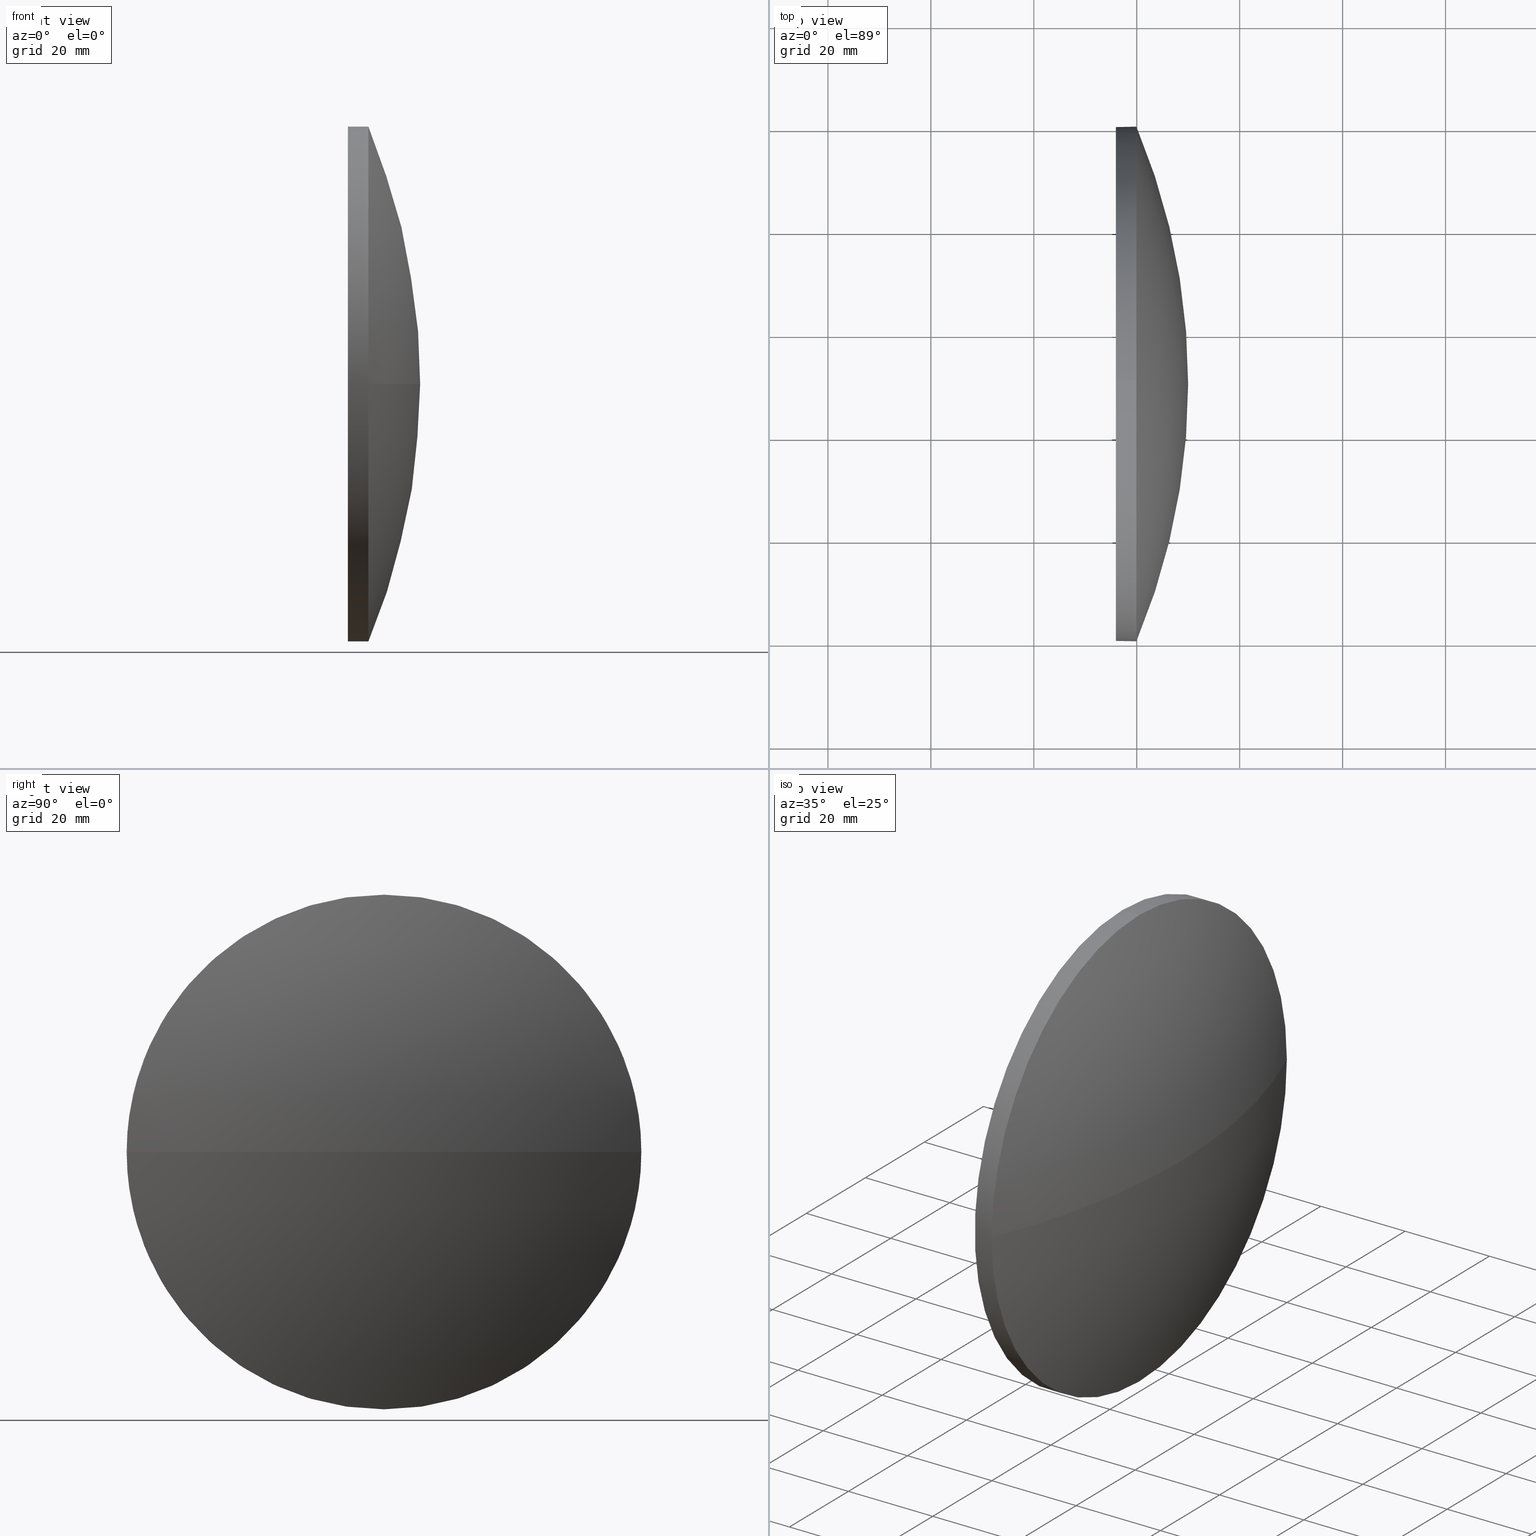
[diagram: canonical four-view strip — front | top / right | iso, engineering-drawing reading convention]
A machine part, canonical four-view strip (front | top / right | iso — engineering-drawing reading convention). The complete STEP part file that produces these views, byte-faithful:
ISO-10303-21;
HEADER;
FILE_DESCRIPTION (( 'STEP AP214' ),
    '1' );
FILE_NAME ('100084.STEP',
    '2019-05-13T01:29:20',
    ( '' ),
    ( '' ),
    'SwSTEP 2.0',
    'SolidWorks 2016',
    '' );
FILE_SCHEMA (( 'AUTOMOTIVE_DESIGN' ));
ENDSEC;

DATA;
#1 =( NAMED_UNIT ( * ) SI_UNIT ( $, .STERADIAN. ) SOLID_ANGLE_UNIT ( ) );
#2 = CYLINDRICAL_SURFACE ( 'NONE', #167, 50.00000000000001400 ) ;
#3 = UNCERTAINTY_MEASURE_WITH_UNIT (LENGTH_MEASURE( 1.000000000000000100E-005 ), #31, 'distance_accuracy_value', 'NONE');
#4 = VERTEX_POINT ( 'NONE', #12 ) ;
#5 = VERTEX_POINT ( 'NONE', #129 ) ;
#6 = MECHANICAL_DESIGN_GEOMETRIC_PRESENTATION_REPRESENTATION (  '', ( #56 ), #128 ) ;
#7 = SURFACE_STYLE_FILL_AREA ( #17 ) ;
#8 = ORIENTED_EDGE ( 'NONE', *, *, #146, .T. ) ;
#9 = ADVANCED_FACE ( 'NONE', ( #37 ), #142, .F. ) ;
#10 = CIRCLE ( 'NONE', #36, 50.00000000000001400 ) ;
#11 = CARTESIAN_POINT ( 'NONE',  ( 239.9389074292314500, 180.0418907599244800, 6.123233995736760600E-015 ) ) ;
#12 = CARTESIAN_POINT ( 'NONE',  ( 239.9389074292314500, 130.0418907599245100, -50.00000000000001400 ) ) ;
#13 = SURFACE_STYLE_USAGE ( .BOTH. , #103 ) ;
#14 = EDGE_CURVE ( 'NONE', #101, #59, #132, .T. ) ;
#15 = AXIS2_PLACEMENT_3D ( 'NONE', #169, #130, #86 ) ;
#16 = CARTESIAN_POINT ( 'NONE',  ( 217.3311486608872700, 130.0418907599245100, -50.00000000000001400 ) ) ;
#17 = FILL_AREA_STYLE ('',( #30 ) ) ;
#18 = COLOUR_RGB ( '',1.000000000000000000, 1.000000000000000000, 1.000000000000000000 ) ;
#19 =( NAMED_UNIT ( * ) PLANE_ANGLE_UNIT ( ) SI_UNIT ( $, .RADIAN. ) );
#20 = DIRECTION ( 'NONE',  ( 1.000000000000000000, 0.0000000000000000000, 0.0000000000000000000 ) ) ;
#21 = MANIFOLD_SOLID_BREP ( '��ת1', #53 ) ;
#22 = SPHERICAL_SURFACE ( 'NONE', #157, 129.4031094527363200 ) ;
#23 = CIRCLE ( 'NONE', #137, 50.00000000000001400 ) ;
#24 = EDGE_CURVE ( 'NONE', #73, #4, #140, .T. ) ;
#25 = AXIS2_PLACEMENT_3D ( 'NONE', #48, #149, #164 ) ;
#26 = DIRECTION ( 'NONE',  ( 0.0000000000000000000, 0.0000000000000000000, 1.000000000000000000 ) ) ;
#27 = ORIENTED_EDGE ( 'NONE', *, *, #74, .T. ) ;
#28 = CARTESIAN_POINT ( 'NONE',  ( 239.9389074292314500, 130.0418907599245100, 0.0000000000000000000 ) ) ;
#29 = SHAPE_DEFINITION_REPRESENTATION ( #160, #96 ) ;
#30 = FILL_AREA_STYLE_COLOUR ( '', #89 ) ;
#31 =( LENGTH_UNIT ( ) NAMED_UNIT ( * ) SI_UNIT ( .MILLI., .METRE. ) );
#32 = CARTESIAN_POINT ( 'NONE',  ( 217.3311486608872700, 130.0418907599245100, 0.0000000000000000000 ) ) ;
#33 = ORIENTED_EDGE ( 'NONE', *, *, #55, .F. ) ;
#34 = DIRECTION ( 'NONE',  ( 0.0000000000000000000, -1.000000000000000000, -1.224646799147353200E-016 ) ) ;
#35 = EDGE_CURVE ( 'NONE', #101, #73, #136, .T. ) ;
#36 = AXIS2_PLACEMENT_3D ( 'NONE', #94, #107, #65 ) ;
#37 = FACE_OUTER_BOUND ( 'NONE', #127, .T. ) ;
#38 = ORIENTED_EDGE ( 'NONE', *, *, #166, .F. ) ;
#39 =( NAMED_UNIT ( * ) PLANE_ANGLE_UNIT ( ) SI_UNIT ( $, .RADIAN. ) );
#40 = ORIENTED_EDGE ( 'NONE', *, *, #74, .F. ) ;
#41 = CARTESIAN_POINT ( 'NONE',  ( 217.3311486608872700, 130.0418907599245100, 50.00000000000001400 ) ) ;
#42 = FILL_AREA_STYLE ('',( #156 ) ) ;
#43 = ORIENTED_EDGE ( 'NONE', *, *, #166, .T. ) ;
#44 = SURFACE_STYLE_USAGE ( .BOTH. , #81 ) ;
#45 = EDGE_CURVE ( 'NONE', #125, #101, #104, .T. ) ;
#46 = ORIENTED_EDGE ( 'NONE', *, *, #14, .T. ) ;
#47 = STYLED_ITEM ( 'NONE', ( #68 ), #96 ) ;
#48 = CARTESIAN_POINT ( 'NONE',  ( 120.5857979764951300, 130.0418907599245700, 0.0000000000000000000 ) ) ;
#49 = LINE ( 'NONE', #16, #64 ) ;
#50 = DIRECTION ( 'NONE',  ( 0.0000000000000000000, 0.0000000000000000000, 1.000000000000000000 ) ) ;
#51 = DIRECTION ( 'NONE',  ( 0.0000000000000000000, -1.000000000000000000, 0.0000000000000000000 ) ) ;
#52 = CARTESIAN_POINT ( 'NONE',  ( 120.5857979764951300, 130.0418907599245700, 0.0000000000000000000 ) ) ;
#53 = CLOSED_SHELL ( 'NONE', ( #54, #139, #84, #110, #9 ) ) ;
#54 = ADVANCED_FACE ( 'NONE', ( #172 ), #113, .T. ) ;
#55 = EDGE_CURVE ( 'NONE', #5, #125, #177, .T. ) ;
#56 = STYLED_ITEM ( 'NONE', ( #138 ), #21 ) ;
#57 =( NAMED_UNIT ( * ) SI_UNIT ( $, .STERADIAN. ) SOLID_ANGLE_UNIT ( ) );
#58 = DIRECTION ( 'NONE',  ( 0.0000000000000000000, 0.0000000000000000000, 1.000000000000000000 ) ) ;
#59 = VERTEX_POINT ( 'NONE', #100 ) ;
#60 = FACE_OUTER_BOUND ( 'NONE', #69, .T. ) ;
#61 = APPLICATION_PROTOCOL_DEFINITION ( 'draft international standard', 'automotive_design', 1998, #144 ) ;
#62 = PRODUCT_DEFINITION_FORMATION_WITH_SPECIFIED_SOURCE ( '�κ�', '', #115, .NOT_KNOWN. ) ;
#63 = CARTESIAN_POINT ( 'NONE',  ( 120.5857979764951300, 130.0418907599245700, 0.0000000000000000000 ) ) ;
#64 = VECTOR ( 'NONE', #174, 1000.000000000000000 ) ;
#65 = DIRECTION ( 'NONE',  ( 0.0000000000000000000, 0.0000000000000000000, 1.000000000000000000 ) ) ;
#66 = FACE_OUTER_BOUND ( 'NONE', #158, .T. ) ;
#67 = AXIS2_PLACEMENT_3D ( 'NONE', #182, #99, #58 ) ;
#68 = PRESENTATION_STYLE_ASSIGNMENT (( #44 ) ) ;
#69 = EDGE_LOOP ( 'NONE', ( #33, #8, #80, #186 ) ) ;
#70 = PRODUCT_RELATED_PRODUCT_CATEGORY ( 'part', '', ( #115 ) ) ;
#71 = CARTESIAN_POINT ( 'NONE',  ( 120.5857979764951300, 130.0418907599245700, 0.0000000000000000000 ) ) ;
#72 = DIRECTION ( 'NONE',  ( 1.000000000000000000, 0.0000000000000000000, 0.0000000000000000000 ) ) ;
#73 = VERTEX_POINT ( 'NONE', #11 ) ;
#74 = EDGE_CURVE ( 'NONE', #59, #145, #23, .T. ) ;
#75 = ORIENTED_EDGE ( 'NONE', *, *, #35, .T. ) ;
#76 = PRESENTATION_LAYER_ASSIGNMENT (  '', '', ( #47 ) ) ;
#77 =( LENGTH_UNIT ( ) NAMED_UNIT ( * ) SI_UNIT ( .MILLI., .METRE. ) );
#78 = DIRECTION ( 'NONE',  ( -1.000000000000000000, -0.0000000000000000000, -0.0000000000000000000 ) ) ;
#79 = DIRECTION ( 'NONE',  ( 0.0000000000000000000, -1.224646799147353200E-016, 1.000000000000000000 ) ) ;
#80 = ORIENTED_EDGE ( 'NONE', *, *, #35, .F. ) ;
#81 = SURFACE_SIDE_STYLE ('',( #7 ) ) ;
#82 = VECTOR ( 'NONE', #184, 1000.000000000000000 ) ;
#83 = ORIENTED_EDGE ( 'NONE', *, *, #45, .T. ) ;
#84 = ADVANCED_FACE ( 'NONE', ( #66 ), #22, .T. ) ;
#85 = UNCERTAINTY_MEASURE_WITH_UNIT (LENGTH_MEASURE( 1.000000000000000100E-005 ), #77, 'distance_accuracy_value', 'NONE');
#86 = DIRECTION ( 'NONE',  ( 0.0000000000000000000, 0.0000000000000000000, 1.000000000000000000 ) ) ;
#87 = ORIENTED_EDGE ( 'NONE', *, *, #171, .T. ) ;
#88 = MECHANICAL_DESIGN_GEOMETRIC_PRESENTATION_REPRESENTATION (  '', ( #47 ), #126 ) ;
#89 = COLOUR_RGB ( '',1.000000000000000000, 1.000000000000000000, 1.000000000000000000 ) ;
#90 = DIRECTION ( 'NONE',  ( -1.000000000000000000, -0.0000000000000000000, -0.0000000000000000000 ) ) ;
#91 = PRODUCT_DEFINITION_CONTEXT ( 'detailed design', #144, 'design' ) ;
#92 = APPLICATION_PROTOCOL_DEFINITION ( 'draft international standard', 'automotive_design', 1998, #165 ) ;
#93 = DIRECTION ( 'NONE',  ( 0.0000000000000000000, -1.000000000000000000, 0.0000000000000000000 ) ) ;
#94 = CARTESIAN_POINT ( 'NONE',  ( 235.9389074292314500, 130.0418907599245100, 0.0000000000000000000 ) ) ;
#95 = DIRECTION ( 'NONE',  ( 0.0000000000000000000, 0.0000000000000000000, 1.000000000000000000 ) ) ;
#96 = ADVANCED_BREP_SHAPE_REPRESENTATION ( '100084', ( #21, #155 ), #118 ) ;
#97 = AXIS2_PLACEMENT_3D ( 'NONE', #159, #90, #26 ) ;
#98 = AXIS2_PLACEMENT_3D ( 'NONE', #28, #141, #143 ) ;
#99 = DIRECTION ( 'NONE',  ( -1.000000000000000000, -0.0000000000000000000, -0.0000000000000000000 ) ) ;
#100 = CARTESIAN_POINT ( 'NONE',  ( 235.9389074292314500, 130.0418907599245100, 50.00000000000001400 ) ) ;
#101 = VERTEX_POINT ( 'NONE', #121 ) ;
#102 = SPHERICAL_SURFACE ( 'NONE', #105, 129.4031094527363200 ) ;
#103 = SURFACE_SIDE_STYLE ('',( #148 ) ) ;
#104 = CIRCLE ( 'NONE', #67, 50.00000000000001400 ) ;
#105 = AXIS2_PLACEMENT_3D ( 'NONE', #63, #150, #51 ) ;
#106 = CARTESIAN_POINT ( 'NONE',  ( 235.9389074292314500, 130.0418907599245100, 0.0000000000000000000 ) ) ;
#107 = DIRECTION ( 'NONE',  ( -1.000000000000000000, -0.0000000000000000000, -0.0000000000000000000 ) ) ;
#108 = CARTESIAN_POINT ( 'NONE',  ( 0.0000000000000000000, 0.0000000000000000000, 0.0000000000000000000 ) ) ;
#109 = AXIS2_PLACEMENT_3D ( 'NONE', #114, #72, #170 ) ;
#110 = ADVANCED_FACE ( 'NONE', ( #151 ), #2, .T. ) ;
#111 = UNCERTAINTY_MEASURE_WITH_UNIT (LENGTH_MEASURE( 1.000000000000000100E-005 ), #116, 'distance_accuracy_value', 'NONE');
#112 = ORIENTED_EDGE ( 'NONE', *, *, #146, .F. ) ;
#113 = CYLINDRICAL_SURFACE ( 'NONE', #97, 50.00000000000001400 ) ;
#114 = CARTESIAN_POINT ( 'NONE',  ( 235.9389074292314500, 130.0418907599245100, 0.0000000000000000000 ) ) ;
#115 = PRODUCT ( '100084', '100084', '', ( #131 ) ) ;
#116 =( LENGTH_UNIT ( ) NAMED_UNIT ( * ) SI_UNIT ( .MILLI., .METRE. ) );
#117 = ORIENTED_EDGE ( 'NONE', *, *, #135, .F. ) ;
#118 =( GEOMETRIC_REPRESENTATION_CONTEXT ( 3 ) GLOBAL_UNCERTAINTY_ASSIGNED_CONTEXT ( ( #85 ) ) GLOBAL_UNIT_ASSIGNED_CONTEXT ( ( #77, #19, #134 ) ) REPRESENTATION_CONTEXT ( 'NONE', 'WORKASPACE' ) );
#119 = ORIENTED_EDGE ( 'NONE', *, *, #135, .T. ) ;
#120 = CARTESIAN_POINT ( 'NONE',  ( 239.9389074292314500, 130.0418907599245100, 0.0000000000000000000 ) ) ;
#121 = CARTESIAN_POINT ( 'NONE',  ( 239.9389074292314500, 130.0418907599245100, 50.00000000000001400 ) ) ;
#122 = DIRECTION ( 'NONE',  ( -1.000000000000000000, -0.0000000000000000000, -0.0000000000000000000 ) ) ;
#123 = DIRECTION ( 'NONE',  ( 0.0000000000000000000, 0.0000000000000000000, 1.000000000000000000 ) ) ;
#124 = DIRECTION ( 'NONE',  ( -1.000000000000000000, -0.0000000000000000000, -0.0000000000000000000 ) ) ;
#125 = VERTEX_POINT ( 'NONE', #180 ) ;
#126 =( GEOMETRIC_REPRESENTATION_CONTEXT ( 3 ) GLOBAL_UNCERTAINTY_ASSIGNED_CONTEXT ( ( #3 ) ) GLOBAL_UNIT_ASSIGNED_CONTEXT ( ( #31, #176, #1 ) ) REPRESENTATION_CONTEXT ( 'NONE', 'WORKASPACE' ) );
#127 = EDGE_LOOP ( 'NONE', ( #27, #87 ) ) ;
#128 =( GEOMETRIC_REPRESENTATION_CONTEXT ( 3 ) GLOBAL_UNCERTAINTY_ASSIGNED_CONTEXT ( ( #111 ) ) GLOBAL_UNIT_ASSIGNED_CONTEXT ( ( #116, #39, #57 ) ) REPRESENTATION_CONTEXT ( 'NONE', 'WORKASPACE' ) );
#129 = CARTESIAN_POINT ( 'NONE',  ( 249.9889074292314300, 130.0418907599245700, 0.0000000000000000000 ) ) ;
#130 = DIRECTION ( 'NONE',  ( -1.000000000000000000, -0.0000000000000000000, -0.0000000000000000000 ) ) ;
#131 = PRODUCT_CONTEXT ( 'NONE', #165, 'mechanical' ) ;
#132 = LINE ( 'NONE', #41, #82 ) ;
#133 = CARTESIAN_POINT ( 'NONE',  ( 235.9389074292314500, 130.0418907599245100, -50.00000000000001400 ) ) ;
#134 =( NAMED_UNIT ( * ) SI_UNIT ( $, .STERADIAN. ) SOLID_ANGLE_UNIT ( ) );
#135 = EDGE_CURVE ( 'NONE', #4, #125, #161, .T. ) ;
#136 = CIRCLE ( 'NONE', #15, 50.00000000000001400 ) ;
#137 = AXIS2_PLACEMENT_3D ( 'NONE', #106, #122, #123 ) ;
#138 = PRESENTATION_STYLE_ASSIGNMENT (( #13 ) ) ;
#139 = ADVANCED_FACE ( 'NONE', ( #60 ), #102, .T. ) ;
#140 = CIRCLE ( 'NONE', #98, 50.00000000000001400 ) ;
#141 = DIRECTION ( 'NONE',  ( -1.000000000000000000, -0.0000000000000000000, -0.0000000000000000000 ) ) ;
#142 = PLANE ( 'NONE',  #109 ) ;
#143 = DIRECTION ( 'NONE',  ( 0.0000000000000000000, 0.0000000000000000000, 1.000000000000000000 ) ) ;
#144 = APPLICATION_CONTEXT ( 'automotive_design' ) ;
#145 = VERTEX_POINT ( 'NONE', #133 ) ;
#146 = EDGE_CURVE ( 'NONE', #5, #73, #175, .T. ) ;
#147 = PRESENTATION_LAYER_ASSIGNMENT (  '', '', ( #56 ) ) ;
#148 = SURFACE_STYLE_FILL_AREA ( #42 ) ;
#149 = DIRECTION ( 'NONE',  ( 0.0000000000000000000, 0.0000000000000000000, -1.000000000000000000 ) ) ;
#150 = DIRECTION ( 'NONE',  ( 0.0000000000000000000, 0.0000000000000000000, 1.000000000000000000 ) ) ;
#151 = FACE_OUTER_BOUND ( 'NONE', #185, .T. ) ;
#152 = DIRECTION ( 'NONE',  ( 0.0000000000000000000, 0.0000000000000000000, 1.000000000000000000 ) ) ;
#153 = ORIENTED_EDGE ( 'NONE', *, *, #24, .T. ) ;
#154 = ORIENTED_EDGE ( 'NONE', *, *, #24, .F. ) ;
#155 = AXIS2_PLACEMENT_3D ( 'NONE', #108, #50, #20 ) ;
#156 = FILL_AREA_STYLE_COLOUR ( '', #18 ) ;
#157 = AXIS2_PLACEMENT_3D ( 'NONE', #71, #95, #93 ) ;
#158 = EDGE_LOOP ( 'NONE', ( #112, #168, #117, #154 ) ) ;
#159 = CARTESIAN_POINT ( 'NONE',  ( 217.3311486608872700, 130.0418907599245100, 0.0000000000000000000 ) ) ;
#160 = PRODUCT_DEFINITION_SHAPE ( 'NONE', 'NONE',  #162 ) ;
#161 = CIRCLE ( 'NONE', #173, 50.00000000000001400 ) ;
#162 = PRODUCT_DEFINITION ( 'δ֪', '', #62, #91 ) ;
#163 = DIRECTION ( 'NONE',  ( 0.0000000000000000000, 0.0000000000000000000, 1.000000000000000000 ) ) ;
#164 = DIRECTION ( 'NONE',  ( -1.000000000000000000, 0.0000000000000000000, 0.0000000000000000000 ) ) ;
#165 = APPLICATION_CONTEXT ( 'automotive_design' ) ;
#166 = EDGE_CURVE ( 'NONE', #4, #145, #49, .T. ) ;
#167 = AXIS2_PLACEMENT_3D ( 'NONE', #32, #124, #163 ) ;
#168 = ORIENTED_EDGE ( 'NONE', *, *, #55, .T. ) ;
#169 = CARTESIAN_POINT ( 'NONE',  ( 239.9389074292314500, 130.0418907599245100, 0.0000000000000000000 ) ) ;
#170 = DIRECTION ( 'NONE',  ( 0.0000000000000000000, 0.0000000000000000000, -1.000000000000000000 ) ) ;
#171 = EDGE_CURVE ( 'NONE', #145, #59, #10, .T. ) ;
#172 = FACE_OUTER_BOUND ( 'NONE', #183, .T. ) ;
#173 = AXIS2_PLACEMENT_3D ( 'NONE', #120, #78, #152 ) ;
#174 = DIRECTION ( 'NONE',  ( -1.000000000000000000, -0.0000000000000000000, -0.0000000000000000000 ) ) ;
#175 = CIRCLE ( 'NONE', #181, 129.4031094527363200 ) ;
#176 =( NAMED_UNIT ( * ) PLANE_ANGLE_UNIT ( ) SI_UNIT ( $, .RADIAN. ) );
#177 = CIRCLE ( 'NONE', #25, 129.4031094527363200 ) ;
#178 = ORIENTED_EDGE ( 'NONE', *, *, #171, .F. ) ;
#179 = ORIENTED_EDGE ( 'NONE', *, *, #14, .F. ) ;
#180 = CARTESIAN_POINT ( 'NONE',  ( 239.9389074292314500, 80.04189075992455600, 0.0000000000000000000 ) ) ;
#181 = AXIS2_PLACEMENT_3D ( 'NONE', #52, #79, #34 ) ;
#182 = CARTESIAN_POINT ( 'NONE',  ( 239.9389074292314500, 130.0418907599245100, 0.0000000000000000000 ) ) ;
#183 = EDGE_LOOP ( 'NONE', ( #153, #43, #40, #179, #75 ) ) ;
#184 = DIRECTION ( 'NONE',  ( -1.000000000000000000, -0.0000000000000000000, -0.0000000000000000000 ) ) ;
#185 = EDGE_LOOP ( 'NONE', ( #38, #119, #83, #46, #178 ) ) ;
#186 = ORIENTED_EDGE ( 'NONE', *, *, #45, .F. ) ;
ENDSEC;
END-ISO-10303-21;
